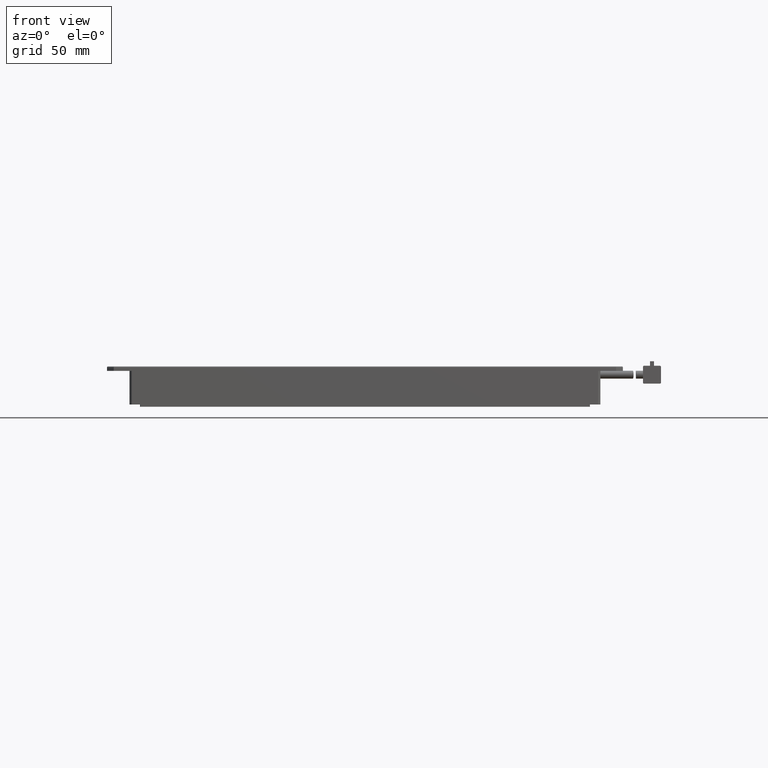
[diagram: clean part render]
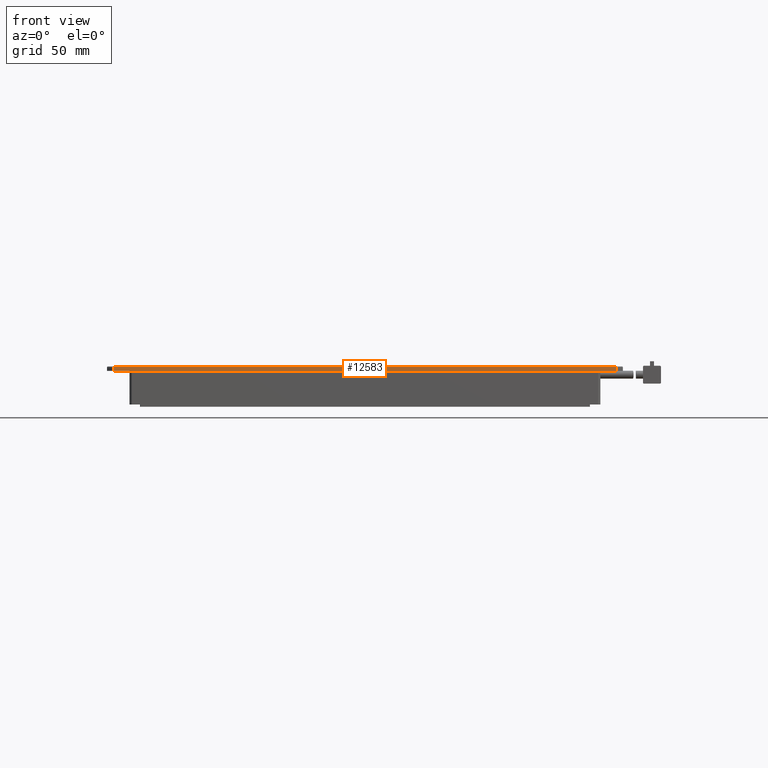
[diagram: same view with one face highlighted and labeled with its STEP entity id]
A machine part, front view. The second image highlights one B-rep face of the part: STEP entity #12583.
In plain terms, the highlighted planar face has unit normal (0, 1, 0).
Its self-contained STEP definition (entity closure, byte-faithful):
#187 = DIRECTION ( 'NONE',  ( 0.0000000000000000000, 0.0000000000000000000, 1.000000000000000000 ) ) ;
#332 = EDGE_CURVE ( 'NONE', #11972, #5288, #12757, .T. ) ;
#1156 = ORIENTED_EDGE ( 'NONE', *, *, #332, .F. ) ;
#1515 = ORIENTED_EDGE ( 'NONE', *, *, #4986, .T. ) ;
#4986 = EDGE_CURVE ( 'NONE', #10058, #19431, #12747, .T. ) ;
#5042 = EDGE_LOOP ( 'NONE', ( #1156, #9225, #1515, #8851 ) ) ;
#5288 = VERTEX_POINT ( 'NONE', #10311 ) ;
#5524 = EDGE_CURVE ( 'NONE', #10058, #11972, #19173, .T. ) ;
#5825 = CARTESIAN_POINT ( 'NONE',  ( -93.33424941752387800, -139.3787539827808400, 1.699999999976330700 ) ) ;
#6048 = AXIS2_PLACEMENT_3D ( 'NONE', #10681, #7085, #17723 ) ;
#6694 = VECTOR ( 'NONE', #7543, 1000.000000000000000 ) ;
#7085 = DIRECTION ( 'NONE',  ( 0.0000000000000000000, 1.000000000000000000, 0.0000000000000000000 ) ) ;
#7400 = DIRECTION ( 'NONE',  ( 1.000000000000000000, 0.0000000000000000000, -0.0000000000000000000 ) ) ;
#7543 = DIRECTION ( 'NONE',  ( 0.0000000000000000000, -0.0000000000000000000, 1.000000000000000000 ) ) ;
#8378 = LINE ( 'NONE', #8942, #21632 ) ;
#8572 = CARTESIAN_POINT ( 'NONE',  ( 130.6657505824761100, -139.3787539827808400, -2.364720832342959200E-011 ) ) ;
#8851 = ORIENTED_EDGE ( 'NONE', *, *, #22102, .T. ) ;
#8942 = CARTESIAN_POINT ( 'NONE',  ( 130.6657505824761100, -139.3787539827808400, 1.999999999976353100 ) ) ;
#9225 = ORIENTED_EDGE ( 'NONE', *, *, #5524, .F. ) ;
#10058 = VERTEX_POINT ( 'NONE', #20604 ) ;
#10311 = CARTESIAN_POINT ( 'NONE',  ( 130.6657505824760800, -139.3787539827808400, 1.699999999976331800 ) ) ;
#10681 = CARTESIAN_POINT ( 'NONE',  ( -93.33424941752387800, -139.3787539827808400, 1.999999999976353100 ) ) ;
#11130 = CARTESIAN_POINT ( 'NONE',  ( -93.33424941752387800, -139.3787539827808400, 1.999999999976353100 ) ) ;
#11972 = VERTEX_POINT ( 'NONE', #5825 ) ;
#12583 = ADVANCED_FACE ( 'NONE', ( #15457 ), #14064, .F. ) ;
#12747 = LINE ( 'NONE', #13158, #17069 ) ;
#12757 = LINE ( 'NONE', #16821, #16280 ) ;
#13158 = CARTESIAN_POINT ( 'NONE',  ( 133.6657505824760800, -139.3787539827808400, -2.364688306277784600E-011 ) ) ;
#13603 = DIRECTION ( 'NONE',  ( 1.000000000000000000, 0.0000000000000000000, -0.0000000000000000000 ) ) ;
#14064 = PLANE ( 'NONE',  #6048 ) ;
#15457 = FACE_OUTER_BOUND ( 'NONE', #5042, .T. ) ;
#16280 = VECTOR ( 'NONE', #13603, 1000.000000000000000 ) ;
#16821 = CARTESIAN_POINT ( 'NONE',  ( -93.33424941752387800, -139.3787539827808400, 1.699999999976330700 ) ) ;
#17069 = VECTOR ( 'NONE', #7400, 1000.000000000000000 ) ;
#17723 = DIRECTION ( 'NONE',  ( 0.0000000000000000000, -0.0000000000000000000, 1.000000000000000000 ) ) ;
#19173 = LINE ( 'NONE', #11130, #6694 ) ;
#19431 = VERTEX_POINT ( 'NONE', #8572 ) ;
#20604 = CARTESIAN_POINT ( 'NONE',  ( -93.33424941752387800, -139.3787539827808400, -2.364688306277784600E-011 ) ) ;
#21632 = VECTOR ( 'NONE', #187, 1000.000000000000000 ) ;
#22102 = EDGE_CURVE ( 'NONE', #19431, #5288, #8378, .T. ) ;